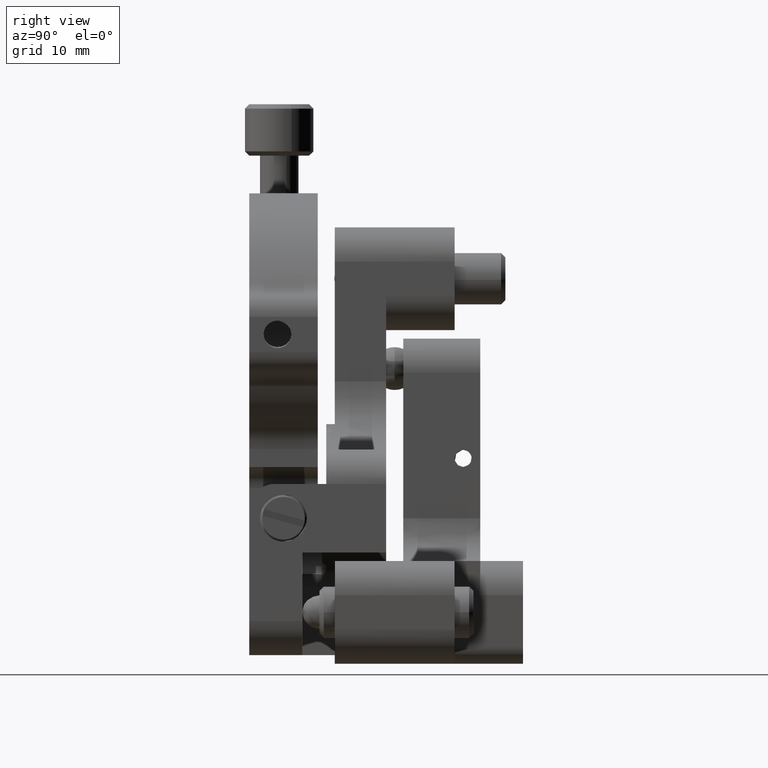
[diagram: clean part render]
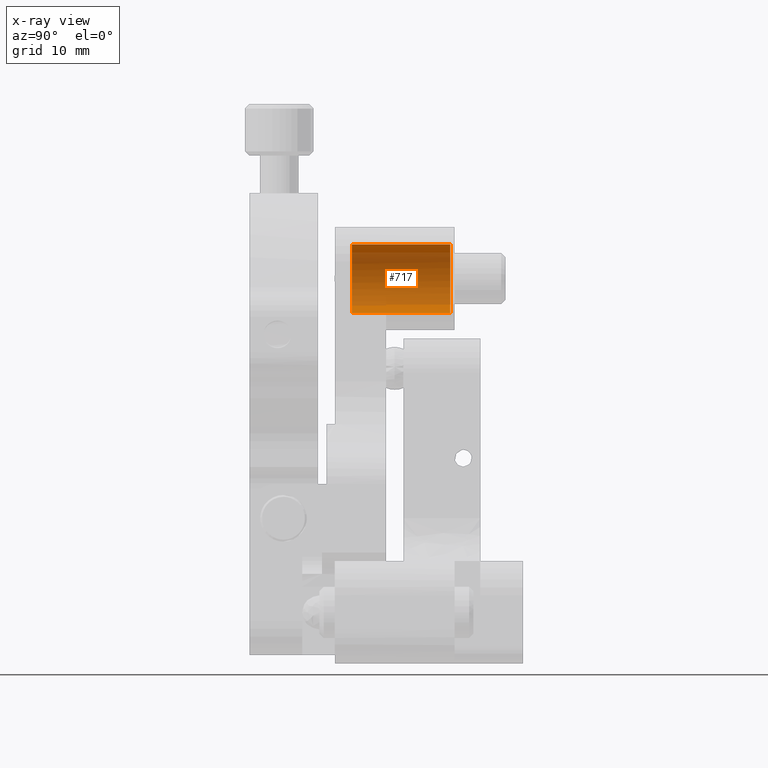
[diagram: x-ray — body ghosted, one internal face saturated and labeled with its STEP entity id]
A machine part, right view, then the same camera in x-ray: the body is ghosted and one INTERNAL B-rep face — a face not visible from any outside direction — is saturated and labeled: STEP entity #717.
In plain terms, the highlighted face is a freeform B-spline surface patch.
Its self-contained STEP definition (entity closure, byte-faithful):
#717=ADVANCED_FACE('',(#1164),#16157,.T.);
#1164=FACE_OUTER_BOUND('',#1659,.T.);
#1659=EDGE_LOOP('',(#3220,#3221,#3222,#3223));
#3220=ORIENTED_EDGE('',*,*,#13175,.F.);
#3221=ORIENTED_EDGE('',*,*,#13181,.T.);
#3222=ORIENTED_EDGE('',*,*,#13180,.F.);
#3223=ORIENTED_EDGE('',*,*,#13182,.T.);
#5584=PCURVE('',#15916,#7958);
#5590=PCURVE('',#16156,#7964);
#5594=PCURVE('',#16157,#7968);
#5595=PCURVE('',#16157,#7969);
#5596=PCURVE('',#16157,#7970);
#5597=PCURVE('',#16157,#7971);
#5599=PCURVE('',#16158,#7973);
#5601=PCURVE('',#16158,#7975);
#7958=DEFINITIONAL_REPRESENTATION('',(#14449),#34671);
#7964=DEFINITIONAL_REPRESENTATION('',(#10277),#34671);
#7968=DEFINITIONAL_REPRESENTATION('',(#10281),#34671);
#7969=DEFINITIONAL_REPRESENTATION('',(#10282),#34671);
#7970=DEFINITIONAL_REPRESENTATION('',(#10283),#34671);
#7971=DEFINITIONAL_REPRESENTATION('',(#10284),#34671);
#7973=DEFINITIONAL_REPRESENTATION('',(#10286),#34671);
#7975=DEFINITIONAL_REPRESENTATION('',(#10288),#34671);
#10277=B_SPLINE_CURVE_WITH_KNOTS('',1,(#26401,#26402),.UNSPECIFIED.,.F.,
 .F.,(2,2),(0.,12.5663706143592),.UNSPECIFIED.);
#10281=B_SPLINE_CURVE_WITH_KNOTS('',1,(#26409,#26410),.UNSPECIFIED.,.F.,
 .F.,(2,2),(12.5663706143592,25.1327412287183),.UNSPECIFIED.);
#10282=B_SPLINE_CURVE_WITH_KNOTS('',1,(#26413,#26414),.UNSPECIFIED.,.F.,
 .F.,(2,2),(1.27,12.77),.UNSPECIFIED.);
#10283=B_SPLINE_CURVE_WITH_KNOTS('',1,(#26415,#26416),.UNSPECIFIED.,.F.,
 .F.,(2,2),(0.,12.5663706143592),.UNSPECIFIED.);
#10284=B_SPLINE_CURVE_WITH_KNOTS('',1,(#26419,#26420),.UNSPECIFIED.,.F.,
 .F.,(2,2),(0.,11.5),.UNSPECIFIED.);
#10286=B_SPLINE_CURVE_WITH_KNOTS('',1,(#26423,#26424),.UNSPECIFIED.,.F.,
 .F.,(2,2),(1.27,12.77),.UNSPECIFIED.);
#10288=B_SPLINE_CURVE_WITH_KNOTS('',1,(#26427,#26428),.UNSPECIFIED.,.F.,
 .F.,(2,2),(0.,11.5),.UNSPECIFIED.);
#11961=SURFACE_CURVE('',#14448,(#5584,#5594),.PCURVE_S1.);
#11966=SURFACE_CURVE('',#14455,(#5590,#5596),.PCURVE_S1.);
#11967=SURFACE_CURVE('',#14456,(#5595,#5599),.PCURVE_S1.);
#11968=SURFACE_CURVE('',#14457,(#5597,#5601),.PCURVE_S1.);
#13175=EDGE_CURVE('',#15476,#15475,#11961,.T.);
#13180=EDGE_CURVE('',#15478,#15477,#11966,.T.);
#13181=EDGE_CURVE('',#15476,#15477,#11967,.T.);
#13182=EDGE_CURVE('',#15478,#15475,#11968,.T.);
#14448=(
BOUNDED_CURVE()
B_SPLINE_CURVE(2,(#26359,#26360,#26361,#26362,#26363),.UNSPECIFIED.,.F.,
 .F.)
B_SPLINE_CURVE_WITH_KNOTS((3,2,3),(12.5663706143592,18.8495559215388,25.1327412287183),
 .UNSPECIFIED.)
CURVE()
GEOMETRIC_REPRESENTATION_ITEM()
RATIONAL_B_SPLINE_CURVE((1.,0.707106781186548,1.,0.707106781186548,1.))
REPRESENTATION_ITEM('')
);
#14449=(
BOUNDED_CURVE()
B_SPLINE_CURVE(2,(#26364,#26365,#26366,#26367,#26368),.UNSPECIFIED.,.F.,
 .F.)
B_SPLINE_CURVE_WITH_KNOTS((3,2,3),(12.5663706143592,18.8495559215388,25.1327412287183),
 .UNSPECIFIED.)
CURVE()
GEOMETRIC_REPRESENTATION_ITEM()
RATIONAL_B_SPLINE_CURVE((1.,0.707106781186548,1.,0.707106781186548,1.))
REPRESENTATION_ITEM('')
);
#14455=(
BOUNDED_CURVE()
B_SPLINE_CURVE(2,(#26396,#26397,#26398,#26399,#26400),.UNSPECIFIED.,.F.,
 .F.)
B_SPLINE_CURVE_WITH_KNOTS((3,2,3),(0.,6.28318530717958,12.5663706143592),
 .UNSPECIFIED.)
CURVE()
GEOMETRIC_REPRESENTATION_ITEM()
RATIONAL_B_SPLINE_CURVE((1.,0.707106781186548,1.,0.707106781186548,1.))
REPRESENTATION_ITEM('')
);
#14456=(
BOUNDED_CURVE()
B_SPLINE_CURVE(1,(#26411,#26412),.UNSPECIFIED.,.F.,.F.)
B_SPLINE_CURVE_WITH_KNOTS((2,2),(1.27,12.77),.UNSPECIFIED.)
CURVE()
GEOMETRIC_REPRESENTATION_ITEM()
RATIONAL_B_SPLINE_CURVE((1.,1.))
REPRESENTATION_ITEM('')
);
#14457=(
BOUNDED_CURVE()
B_SPLINE_CURVE(1,(#26417,#26418),.UNSPECIFIED.,.F.,.F.)
B_SPLINE_CURVE_WITH_KNOTS((2,2),(0.,11.5),.UNSPECIFIED.)
CURVE()
GEOMETRIC_REPRESENTATION_ITEM()
RATIONAL_B_SPLINE_CURVE((1.,1.))
REPRESENTATION_ITEM('')
);
#15475=VERTEX_POINT('',#26133);
#15476=VERTEX_POINT('',#26134);
#15477=VERTEX_POINT('',#26135);
#15478=VERTEX_POINT('',#26136);
#15916=B_SPLINE_SURFACE_WITH_KNOTS('',1,1,((#26031,#26032),(#26033,#26034)),
 .UNSPECIFIED.,.F.,.F.,.F.,(2,2),(2,2),(1.13242748511766E-14,10.56),(-4.9960036108132E-15,
10.56),.UNSPECIFIED.);
#16156=(
BOUNDED_SURFACE()
B_SPLINE_SURFACE(2,1,((#26053,#26054),(#26055,#26056),(#26057,#26058),(#26059,
#26060),(#26061,#26062),(#26063,#26064),(#26065,#26066),(#26067,#26068),
(#26069,#26070)),.UNSPECIFIED.,.T.,.F.,.F.)
B_SPLINE_SURFACE_WITH_KNOTS((3,2,2,2,3),(2,2),(0.,1.5707963267949,3.14159265358979,
4.71238898038469,6.28318530717959),(0.,6.39224530192639),.UNSPECIFIED.)
GEOMETRIC_REPRESENTATION_ITEM()
RATIONAL_B_SPLINE_SURFACE(((1.,1.),(0.707106781186548,0.707106781186548),
(1.,1.),(0.707106781186548,0.707106781186548),(1.,1.),(0.707106781186548,
0.707106781186548),(1.,1.),(0.707106781186548,0.707106781186548),(1.,1.)))
REPRESENTATION_ITEM('')
SURFACE()
);
#16157=(
BOUNDED_SURFACE()
B_SPLINE_SURFACE(2,1,((#26071,#26072),(#26073,#26074),(#26075,#26076),(#26077,
#26078),(#26079,#26080),(#26081,#26082),(#26083,#26084),(#26085,#26086),
(#26087,#26088)),.UNSPECIFIED.,.T.,.F.,.F.)
B_SPLINE_SURFACE_WITH_KNOTS((3,2,2,2,3),(2,2),(0.,1.5707963267949,3.14159265358979,
4.71238898038469,6.28318530717959),(0.,14.04),.UNSPECIFIED.)
GEOMETRIC_REPRESENTATION_ITEM()
RATIONAL_B_SPLINE_SURFACE(((1.,1.),(0.707106781186548,0.707106781186548),
(1.,1.),(0.707106781186548,0.707106781186548),(1.,1.),(0.707106781186548,
0.707106781186548),(1.,1.),(0.707106781186548,0.707106781186548),(1.,1.)))
REPRESENTATION_ITEM('')
SURFACE()
);
#16158=(
BOUNDED_SURFACE()
B_SPLINE_SURFACE(2,1,((#26089,#26090),(#26091,#26092),(#26093,#26094),(#26095,
#26096),(#26097,#26098),(#26099,#26100),(#26101,#26102),(#26103,#26104),
(#26105,#26106)),.UNSPECIFIED.,.T.,.F.,.F.)
B_SPLINE_SURFACE_WITH_KNOTS((3,2,2,2,3),(2,2),(0.,1.5707963267949,3.14159265358979,
4.71238898038469,6.28318530717959),(0.,14.04),.UNSPECIFIED.)
GEOMETRIC_REPRESENTATION_ITEM()
RATIONAL_B_SPLINE_SURFACE(((1.,1.),(0.707106781186548,0.707106781186548),
(1.,1.),(0.707106781186548,0.707106781186548),(1.,1.),(0.707106781186548,
0.707106781186548),(1.,1.),(0.707106781186548,0.707106781186548),(1.,1.)))
REPRESENTATION_ITEM('')
SURFACE()
);
#26031=CARTESIAN_POINT('',(103.366464428215,32.2452520797229,2.00000000000001));
#26032=CARTESIAN_POINT('',(103.366464428215,42.8052520797229,2.00000000000001));
#26033=CARTESIAN_POINT('',(113.926464428215,32.2452520797229,2.00000000000001));
#26034=CARTESIAN_POINT('',(113.926464428215,42.8052520797229,2.00000000000001));
#26053=CARTESIAN_POINT('',(108.646464428215,37.5252520797229,17.5));
#26054=CARTESIAN_POINT('',(108.646464428215,42.0452520797229,12.98));
#26055=CARTESIAN_POINT('',(108.646464428215,37.5252520797229,17.5));
#26056=CARTESIAN_POINT('',(113.166464428215,42.0452520797229,12.98));
#26057=CARTESIAN_POINT('',(108.646464428215,37.5252520797229,17.5));
#26058=CARTESIAN_POINT('',(113.166464428215,37.5252520797229,12.98));
#26059=CARTESIAN_POINT('',(108.646464428215,37.5252520797229,17.5));
#26060=CARTESIAN_POINT('',(113.166464428215,33.0052520797229,12.98));
#26061=CARTESIAN_POINT('',(108.646464428215,37.5252520797229,17.5));
#26062=CARTESIAN_POINT('',(108.646464428215,33.0052520797229,12.98));
#26063=CARTESIAN_POINT('',(108.646464428215,37.5252520797229,17.5));
#26064=CARTESIAN_POINT('',(104.126464428215,33.0052520797229,12.98));
#26065=CARTESIAN_POINT('',(108.646464428215,37.5252520797229,17.5));
#26066=CARTESIAN_POINT('',(104.126464428215,37.5252520797229,12.98));
#26067=CARTESIAN_POINT('',(108.646464428215,37.5252520797229,17.5));
#26068=CARTESIAN_POINT('',(104.126464428215,42.0452520797229,12.98));
#26069=CARTESIAN_POINT('',(108.646464428215,37.5252520797229,17.5));
#26070=CARTESIAN_POINT('',(108.646464428215,42.0452520797229,12.98));
#26071=CARTESIAN_POINT('',(108.646464428215,41.5252520797229,0.730000000000012));
#26072=CARTESIAN_POINT('',(108.646464428215,41.5252520797229,14.77));
#26073=CARTESIAN_POINT('',(104.646464428215,41.5252520797229,0.730000000000013));
#26074=CARTESIAN_POINT('',(104.646464428215,41.5252520797229,14.77));
#26075=CARTESIAN_POINT('',(104.646464428215,37.5252520797229,0.730000000000012));
#26076=CARTESIAN_POINT('',(104.646464428215,37.5252520797229,14.77));
#26077=CARTESIAN_POINT('',(104.646464428215,33.5252520797229,0.730000000000013));
#26078=CARTESIAN_POINT('',(104.646464428215,33.5252520797229,14.77));
#26079=CARTESIAN_POINT('',(108.646464428215,33.5252520797229,0.730000000000012));
#26080=CARTESIAN_POINT('',(108.646464428215,33.5252520797229,14.77));
#26081=CARTESIAN_POINT('',(112.646464428215,33.5252520797229,0.730000000000013));
#26082=CARTESIAN_POINT('',(112.646464428215,33.5252520797229,14.77));
#26083=CARTESIAN_POINT('',(112.646464428215,37.5252520797229,0.730000000000012));
#26084=CARTESIAN_POINT('',(112.646464428215,37.5252520797229,14.77));
#26085=CARTESIAN_POINT('',(112.646464428215,41.5252520797229,0.730000000000013));
#26086=CARTESIAN_POINT('',(112.646464428215,41.5252520797229,14.77));
#26087=CARTESIAN_POINT('',(108.646464428215,41.5252520797229,0.730000000000012));
#26088=CARTESIAN_POINT('',(108.646464428215,41.5252520797229,14.77));
#26089=CARTESIAN_POINT('',(108.646464428215,41.5252520797229,0.730000000000012));
#26090=CARTESIAN_POINT('',(108.646464428215,41.5252520797229,14.77));
#26091=CARTESIAN_POINT('',(104.646464428215,41.5252520797229,0.730000000000013));
#26092=CARTESIAN_POINT('',(104.646464428215,41.5252520797229,14.77));
#26093=CARTESIAN_POINT('',(104.646464428215,37.5252520797229,0.730000000000012));
#26094=CARTESIAN_POINT('',(104.646464428215,37.5252520797229,14.77));
#26095=CARTESIAN_POINT('',(104.646464428215,33.5252520797229,0.730000000000013));
#26096=CARTESIAN_POINT('',(104.646464428215,33.5252520797229,14.77));
#26097=CARTESIAN_POINT('',(108.646464428215,33.5252520797229,0.730000000000012));
#26098=CARTESIAN_POINT('',(108.646464428215,33.5252520797229,14.77));
#26099=CARTESIAN_POINT('',(112.646464428215,33.5252520797229,0.730000000000013));
#26100=CARTESIAN_POINT('',(112.646464428215,33.5252520797229,14.77));
#26101=CARTESIAN_POINT('',(112.646464428215,37.5252520797229,0.730000000000012));
#26102=CARTESIAN_POINT('',(112.646464428215,37.5252520797229,14.77));
#26103=CARTESIAN_POINT('',(112.646464428215,41.5252520797229,0.730000000000013));
#26104=CARTESIAN_POINT('',(112.646464428215,41.5252520797229,14.77));
#26105=CARTESIAN_POINT('',(108.646464428215,41.5252520797229,0.730000000000012));
#26106=CARTESIAN_POINT('',(108.646464428215,41.5252520797229,14.77));
#26133=CARTESIAN_POINT('',(108.646464428215,33.5252520797229,2.00000000000001));
#26134=CARTESIAN_POINT('',(108.646464428215,41.5252520797229,2.00000000000001));
#26135=CARTESIAN_POINT('',(108.646464428215,41.5252520797229,13.5));
#26136=CARTESIAN_POINT('',(108.646464428215,33.5252520797229,13.5));
#26359=CARTESIAN_POINT('',(108.646464428215,41.5252520797229,2.00000000000001));
#26360=CARTESIAN_POINT('',(112.646464428215,41.5252520797229,2.00000000000001));
#26361=CARTESIAN_POINT('',(112.646464428215,37.5252520797229,2.00000000000001));
#26362=CARTESIAN_POINT('',(112.646464428215,33.5252520797229,2.00000000000001));
#26363=CARTESIAN_POINT('',(108.646464428215,33.5252520797229,2.00000000000001));
#26364=CARTESIAN_POINT('',(5.28,9.27999999999999));
#26365=CARTESIAN_POINT('',(9.28,9.27999999999999));
#26366=CARTESIAN_POINT('',(9.28,5.27999999999999));
#26367=CARTESIAN_POINT('',(9.28,1.27999999999999));
#26368=CARTESIAN_POINT('',(5.28,1.27999999999999));
#26396=CARTESIAN_POINT('',(108.646464428215,33.5252520797229,13.5));
#26397=CARTESIAN_POINT('',(112.646464428215,33.5252520797229,13.5));
#26398=CARTESIAN_POINT('',(112.646464428215,37.5252520797229,13.5));
#26399=CARTESIAN_POINT('',(112.646464428215,41.5252520797229,13.5));
#26400=CARTESIAN_POINT('',(108.646464428215,41.5252520797229,13.5));
#26401=CARTESIAN_POINT('',(3.14159265358979,5.65685424949238));
#26402=CARTESIAN_POINT('',(0.,5.65685424949238));
#26409=CARTESIAN_POINT('',(6.28318530717959,1.27));
#26410=CARTESIAN_POINT('',(3.14159265358979,1.27));
#26411=CARTESIAN_POINT('',(108.646464428215,41.5252520797229,2.00000000000001));
#26412=CARTESIAN_POINT('',(108.646464428215,41.5252520797229,13.5));
#26413=CARTESIAN_POINT('',(6.28318530717959,1.27));
#26414=CARTESIAN_POINT('',(6.28318530717959,12.77));
#26415=CARTESIAN_POINT('',(3.14159265358979,12.77));
#26416=CARTESIAN_POINT('',(6.28318530717959,12.77));
#26417=CARTESIAN_POINT('',(108.646464428215,33.5252520797229,13.5));
#26418=CARTESIAN_POINT('',(108.646464428215,33.5252520797229,2.00000000000001));
#26419=CARTESIAN_POINT('',(3.14159265358979,12.77));
#26420=CARTESIAN_POINT('',(3.14159265358979,1.27));
#26423=CARTESIAN_POINT('',(0.,1.27));
#26424=CARTESIAN_POINT('',(0.,12.77));
#26427=CARTESIAN_POINT('',(3.14159265358979,12.77));
#26428=CARTESIAN_POINT('',(3.14159265358979,1.27));
#34671=(
GEOMETRIC_REPRESENTATION_CONTEXT(2)
PARAMETRIC_REPRESENTATION_CONTEXT()
REPRESENTATION_CONTEXT('pspace','')
);